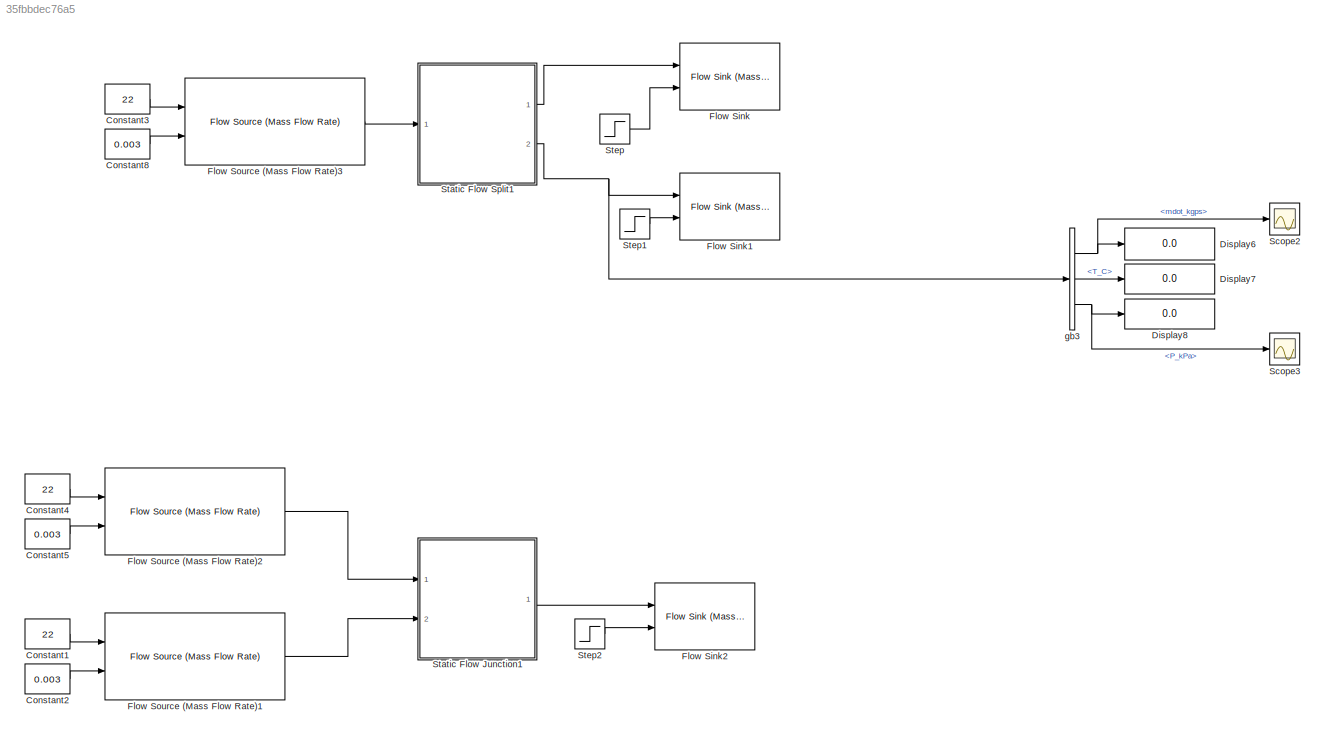
MODEL slx_35fbbdec76a5
KIND model
BLOCK [Constant] Constant1
  Value = 22
BLOCK [Constant] Constant2
  Value = 0.003
BLOCK [Constant] Constant3
  Value = 22
BLOCK [Constant] Constant4
  Value = 22
BLOCK [Constant] Constant5
  Value = 0.003
BLOCK [Constant] Constant8
  Value = 0.003
BLOCK [Display] Display6
  Decimation = 1
  Ports = [1]
BLOCK [Display] Display7
  Decimation = 1
  Ports = [1]
BLOCK [Display] Display8
  Decimation = 1
  Ports = [1]
BLOCK [Reference] Flow Sink  REF=DAEMOT_Lib/Components/Flow Sink (Mass Flow Rate)
  M = 0
  M_ext = on
  P = 0
  P_ext = on
  Ports = [2]
  SourceBlock = DAEMOT_Lib/Components/Flow Sink (Mass Flow Rate)
  SourceType = Flow Sink (Mass Flow Rate)
  T = 0
  T_ext = on
BLOCK [Reference] Flow Sink1  REF=DAEMOT_Lib/Components/Flow Sink (Mass Flow Rate)
  M = 0
  M_ext = on
  P = 0
  P_ext = on
  Ports = [2]
  SourceBlock = DAEMOT_Lib/Components/Flow Sink (Mass Flow Rate)
  SourceType = Flow Sink (Mass Flow Rate)
  T = 0
  T_ext = on
BLOCK [Reference] Flow Sink2  REF=DAEMOT_Lib/Components/Flow Sink (Mass Flow Rate)
  M = 0
  M_ext = on
  P = 0
  P_ext = on
  Ports = [2]
  SourceBlock = DAEMOT_Lib/Components/Flow Sink (Mass Flow Rate)
  SourceType = Flow Sink (Mass Flow Rate)
  T = 0
  T_ext = on
BLOCK [Reference] Flow Source (Mass Flow Rate)1  REF=DAEMOT_Lib/Components/Flow Source (Mass Flow Rate)
  M = 0
  M_ext = on
  P = 0
  P_ext = on
  Ports = [2, 1]
  SourceBlock = DAEMOT_Lib/Components/Flow Source (Mass Flow Rate)
  SourceType = Flow Source (Mass Flow Rate)
  T = 0
  T_ext = on
BLOCK [Reference] Flow Source (Mass Flow Rate)2  REF=DAEMOT_Lib/Components/Flow Source (Mass Flow Rate)
  M = 0
  M_ext = on
  P = 0
  P_ext = on
  Ports = [2, 1]
  SourceBlock = DAEMOT_Lib/Components/Flow Source (Mass Flow Rate)
  SourceType = Flow Source (Mass Flow Rate)
  T = 0
  T_ext = on
BLOCK [Reference] Flow Source (Mass Flow Rate)3  REF=DAEMOT_Lib/Components/Flow Source (Mass Flow Rate)
  M = 0
  M_ext = on
  P = 0
  P_ext = on
  Ports = [2, 1]
  SourceBlock = DAEMOT_Lib/Components/Flow Source (Mass Flow Rate)
  SourceType = Flow Source (Mass Flow Rate)
  T = 0
  T_ext = on
BLOCK [Scope] Scope2
  Floating = off
  NumInputPorts = 1
  Ports = [1]
  SaveName = ScopeData2
  ShowLegends = off
BLOCK [Scope] Scope3
  Floating = off
  NumInputPorts = 1
  Ports = [1]
  SaveName = ScopeData3
  ShowLegends = off
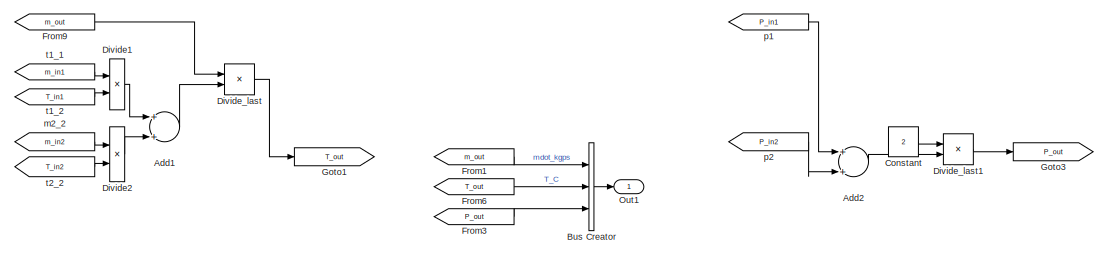
[diagram: Static Flow Junction1 - part 1/2, right side, full height]
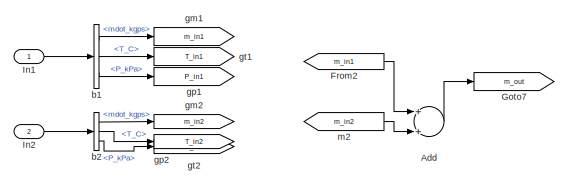
[diagram: Static Flow Junction1 - part 2/2, middle left region]
BLOCK [SubSystem] Static Flow Junction1
  AncestorBlock = DAEMOT_Lib/Components/Static Flow Junction
  CopyFcn = h      = get_param(gcb,'handle');   % Get block handle\nblk    = gcb; \n\nset_param(blk, 'LinkStatus', 'inactive')
  Ports = [2, 1]
  RequestExecContextInheritance = off
BLOCK [Sum] Static Flow Junction1/Add
  InputSameDT = off
  OutDataTypeStr = Inherit: Inherit via internal rule
  Ports = [2, 1]
  SaturateOnIntegerOverflow = off
BLOCK [Sum] Static Flow Junction1/Add1
  InputSameDT = off
  OutDataTypeStr = Inherit: Inherit via internal rule
  Ports = [2, 1]
  SaturateOnIntegerOverflow = off
BLOCK [Sum] Static Flow Junction1/Add2
  InputSameDT = off
  OutDataTypeStr = Inherit: Inherit via internal rule
  Ports = [2, 1]
  SaturateOnIntegerOverflow = off
BLOCK [BusCreator] Static Flow Junction1/Bus Creator
  DisplayOption = bar
  Inputs = 3
  Ports = [3, 1]
BLOCK [Constant] Static Flow Junction1/Constant
  Value = 2
BLOCK [Product] Static Flow Junction1/Divide1
  InputSameDT = off
  Inputs = **
  OutDataTypeStr = Inherit: Inherit via internal rule
  Ports = [2, 1]
  RndMeth = Floor
  SaturateOnIntegerOverflow = off
BLOCK [Product] Static Flow Junction1/Divide2
  InputSameDT = off
  Inputs = **
  OutDataTypeStr = Inherit: Inherit via internal rule
  Ports = [2, 1]
  RndMeth = Floor
  SaturateOnIntegerOverflow = off
BLOCK [Product] Static Flow Junction1/Divide_last
  InputSameDT = off
  Inputs = /*
  OutDataTypeStr = Inherit: Inherit via internal rule
  Ports = [2, 1]
  RndMeth = Floor
  SaturateOnIntegerOverflow = off
BLOCK [Product] Static Flow Junction1/Divide_last1
  InputSameDT = off
  Inputs = /*
  OutDataTypeStr = Inherit: Inherit via internal rule
  Ports = [2, 1]
  RndMeth = Floor
  SaturateOnIntegerOverflow = off
BLOCK [From] Static Flow Junction1/From1
  CloseFcn = tagdialog Close
  GotoTag = m_out
BLOCK [From] Static Flow Junction1/From2
  CloseFcn = tagdialog Close
  GotoTag = m_in1
BLOCK [From] Static Flow Junction1/From3
  CloseFcn = tagdialog Close
  GotoTag = P_out
BLOCK [From] Static Flow Junction1/From6
  CloseFcn = tagdialog Close
  GotoTag = T_out
BLOCK [From] Static Flow Junction1/From9
  CloseFcn = tagdialog Close
  GotoTag = m_out
BLOCK [Goto] Static Flow Junction1/Goto1
  GotoTag = T_out
BLOCK [Goto] Static Flow Junction1/Goto3
  GotoTag = P_out
BLOCK [Goto] Static Flow Junction1/Goto7
  GotoTag = m_out
BLOCK [Inport] Static Flow Junction1/In1
  IconDisplay = Port number
BLOCK [Inport] Static Flow Junction1/In2
  IconDisplay = Port number
  Port = 2
BLOCK [Outport] Static Flow Junction1/Out1
  IconDisplay = Port number
BLOCK [BusSelector] Static Flow Junction1/b1
  OutputSignals = mdot_kgps,T_C,P_kPa
  Ports = [1, 3]
BLOCK [BusSelector] Static Flow Junction1/b2
  OutputSignals = mdot_kgps,T_C,P_kPa
  Ports = [1, 3]
BLOCK [Goto] Static Flow Junction1/gm1
  GotoTag = m_in1
BLOCK [Goto] Static Flow Junction1/gm2
  GotoTag = m_in2
BLOCK [Goto] Static Flow Junction1/gp1
  GotoTag = P_in1
BLOCK [Goto] Static Flow Junction1/gp2
  GotoTag = P_in2
BLOCK [Goto] Static Flow Junction1/gt1
  GotoTag = T_in1
BLOCK [Goto] Static Flow Junction1/gt2
  GotoTag = T_in2
BLOCK [From] Static Flow Junction1/m2
  GotoTag = m_in2
BLOCK [From] Static Flow Junction1/m2_2
  GotoTag = m_in2
BLOCK [From] Static Flow Junction1/p1
  CloseFcn = tagdialog Close
  GotoTag = P_in1
BLOCK [From] Static Flow Junction1/p2
  GotoTag = P_in2
BLOCK [From] Static Flow Junction1/t1_1
  CloseFcn = tagdialog Close
  GotoTag = m_in1
BLOCK [From] Static Flow Junction1/t1_2
  CloseFcn = tagdialog Close
  GotoTag = T_in1
BLOCK [From] Static Flow Junction1/t2_2
  GotoTag = T_in2
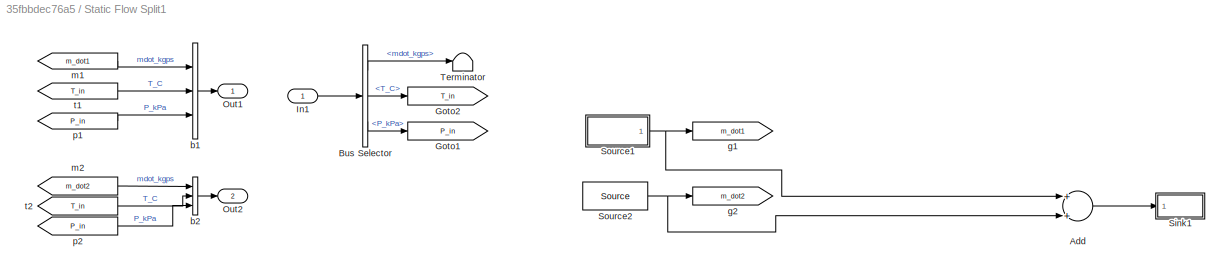
BLOCK [SubSystem] Static Flow Split1
  AncestorBlock = DAEMOT_Lib/Components/Static Flow Split
  CopyFcn = h      = get_param(gcb,'handle');   % Get block handle\nblk    = gcb; \n\nset_param(blk, 'LinkStatus', 'inactive')
  Ports = [1, 2]
  RequestExecContextInheritance = off
BLOCK [Sum] Static Flow Split1/Add
  InputSameDT = off
  OutDataTypeStr = Inherit: Inherit via internal rule
  Ports = [2, 1]
  SaturateOnIntegerOverflow = off
BLOCK [BusSelector] Static Flow Split1/Bus Selector
  OutputSignals = mdot_kgps,T_C,P_kPa
  Ports = [1, 3]
BLOCK [Goto] Static Flow Split1/Goto1
  GotoTag = P_in
BLOCK [Goto] Static Flow Split1/Goto2
  GotoTag = T_in
BLOCK [Inport] Static Flow Split1/In1
  IconDisplay = Port number
BLOCK [Outport] Static Flow Split1/Out1
  IconDisplay = Port number
BLOCK [Outport] Static Flow Split1/Out2
  IconDisplay = Port number
  Port = 2
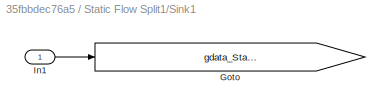
BLOCK [SubSystem] Static Flow Split1/Sink1
  CopyFcn = rev_comms_sink()
  NameChangeFcn = rev_comms_sink()
  Ports = [1]
  RequestExecContextInheritance = off
BLOCK [Goto] Static Flow Split1/Sink1/Goto
  GotoTag = gdata_Static_Split_Junction_testStaticFlowSplit1Sink1
  TagVisibility = global
BLOCK [Inport] Static Flow Split1/Sink1/In1
  IconDisplay = Port number
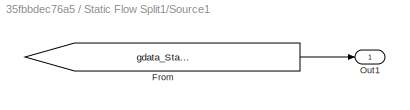
BLOCK [SubSystem] Static Flow Split1/Source1
  Ports = [0, 1]
  RequestExecContextInheritance = off
BLOCK [From] Static Flow Split1/Source1/From
  GotoTag = gdata_Static_Split_Junction_testFlowSinkSink1
  TagVisibility = global
BLOCK [Outport] Static Flow Split1/Source1/Out1
  IconDisplay = Port number
BLOCK [Reference] Static Flow Split1/Source2  REF=DAEMOT_Lib/Support Functions/Source
  Ports = [0, 1]
  SourceBlock = DAEMOT_Lib/Support Functions/Source
  SourceType = Source
BLOCK [Terminator] Static Flow Split1/Terminator
BLOCK [BusCreator] Static Flow Split1/b1
  DisplayOption = bar
  Inputs = 3
  Ports = [3, 1]
BLOCK [BusCreator] Static Flow Split1/b2
  DisplayOption = bar
  Inputs = 3
  Ports = [3, 1]
BLOCK [Goto] Static Flow Split1/g1
  GotoTag = m_dot1
BLOCK [Goto] Static Flow Split1/g2
  GotoTag = m_dot2
BLOCK [From] Static Flow Split1/m1
  CloseFcn = tagdialog Close
  GotoTag = m_dot1
BLOCK [From] Static Flow Split1/m2
  GotoTag = m_dot2
BLOCK [From] Static Flow Split1/p1
  CloseFcn = tagdialog Close
  GotoTag = P_in
BLOCK [From] Static Flow Split1/p2
  GotoTag = P_in
BLOCK [From] Static Flow Split1/t1
  CloseFcn = tagdialog Close
  GotoTag = T_in
BLOCK [From] Static Flow Split1/t2
  GotoTag = T_in
BLOCK [Step] Step
  After = .003
  Before = .002
  SampleTime = 0
  Time = 100
BLOCK [Step] Step1
  After = .003
  Before = .002
  SampleTime = 0
  Time = 100
BLOCK [Step] Step2
  After = .003
  Before = .002
  SampleTime = 0
  Time = 100
BLOCK [BusSelector] gb3
  OutputSignals = mdot_kgps,T_C,P_kPa
  Ports = [1, 3]
LINE Constant1:1 -> Flow Source (Mass Flow Rate)1:1
LINE Constant2:1 -> Flow Source (Mass Flow Rate)1:2
LINE Constant3:1 -> Flow Source (Mass Flow Rate)3:1
LINE Constant4:1 -> Flow Source (Mass Flow Rate)2:1
LINE Constant5:1 -> Flow Source (Mass Flow Rate)2:2
LINE Constant8:1 -> Flow Source (Mass Flow Rate)3:2
LINE Flow Source (Mass Flow Rate)1:1 -> Static Flow Junction1:2
LINE Flow Source (Mass Flow Rate)2:1 -> Static Flow Junction1:1
LINE Flow Source (Mass Flow Rate)3:1 -> Static Flow Split1:1
LINE Static Flow Junction1:1 -> Flow Sink2:1
LINE Static Flow Split1:1 -> Flow Sink:1
NET Static Flow Split1:2 -> Flow Sink1:1, gb3:1
LINE Step1:1 -> Flow Sink1:2
LINE Step2:1 -> Flow Sink2:2
LINE Step:1 -> Flow Sink:2
NET gb3:1 -> Display6:1, Scope2:1
LINE gb3:2 -> Display7:1
NET gb3:3 -> Display8:1, Scope3:1
note: NET lines group one-source signal fan-out (src -> all destinations, sorted); 1:1 wires keep LINE
